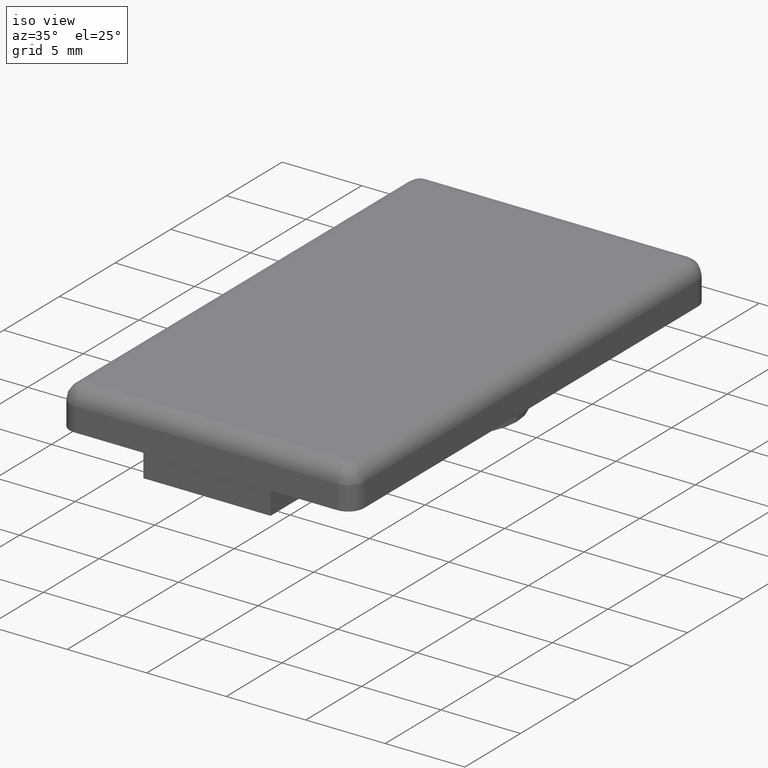
[diagram: clean part render]
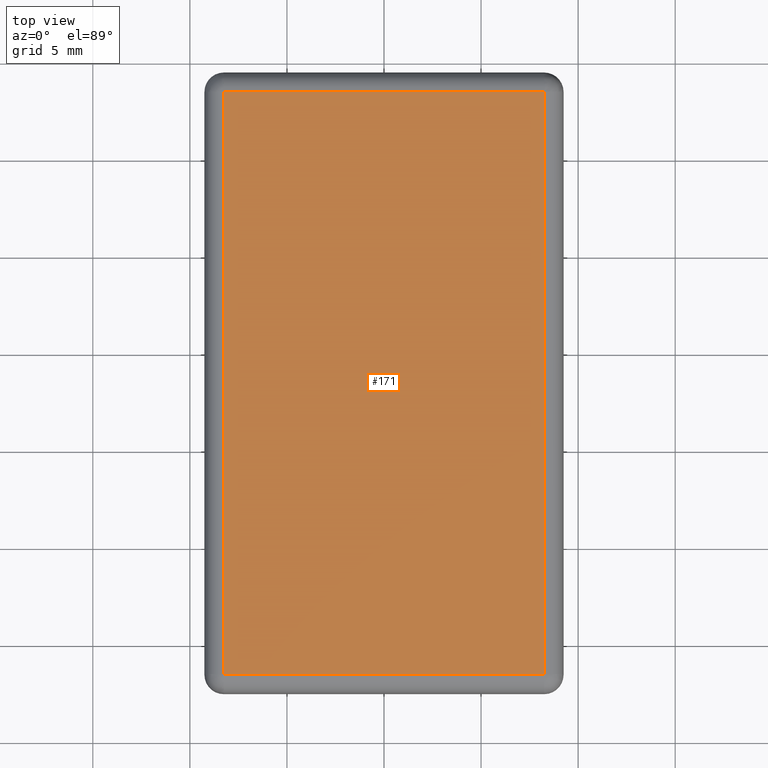
[diagram: tour spotlight — one face highlighted and labeled with its STEP entity id]
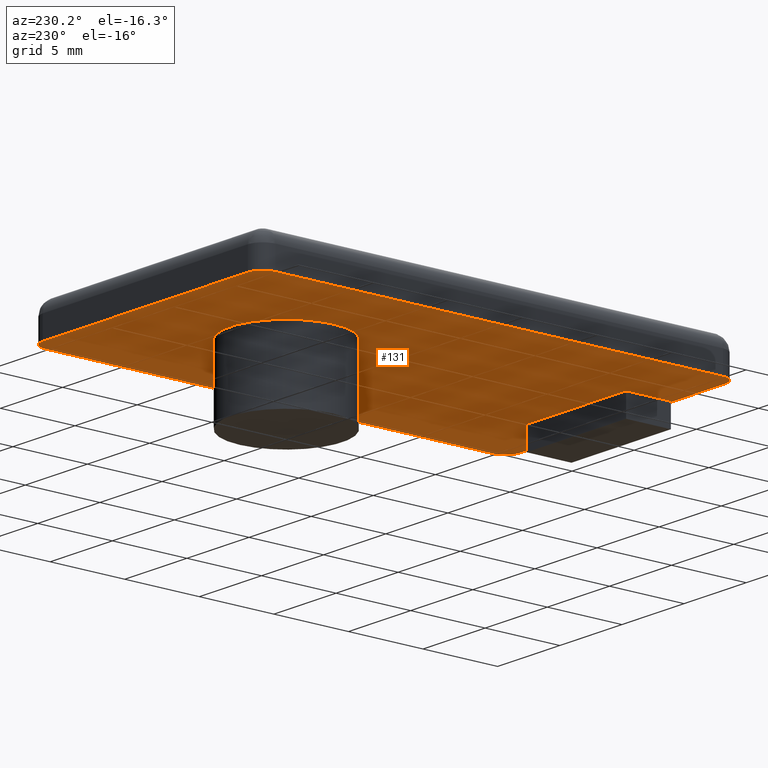
[diagram: tour spotlight — one face highlighted and labeled with its STEP entity id]
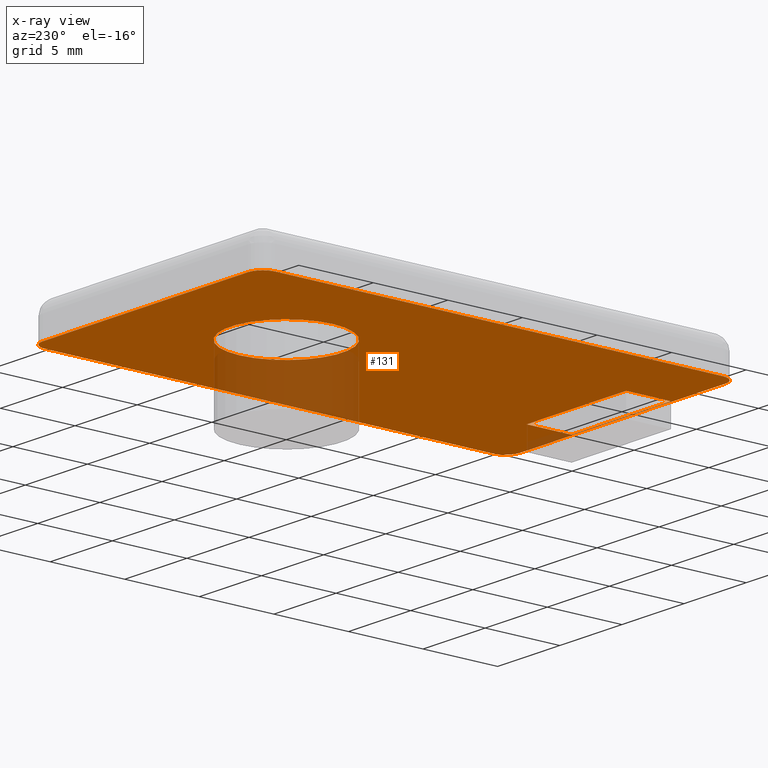
[diagram: x-ray of the same camera — body ghosted, this tour face saturated]
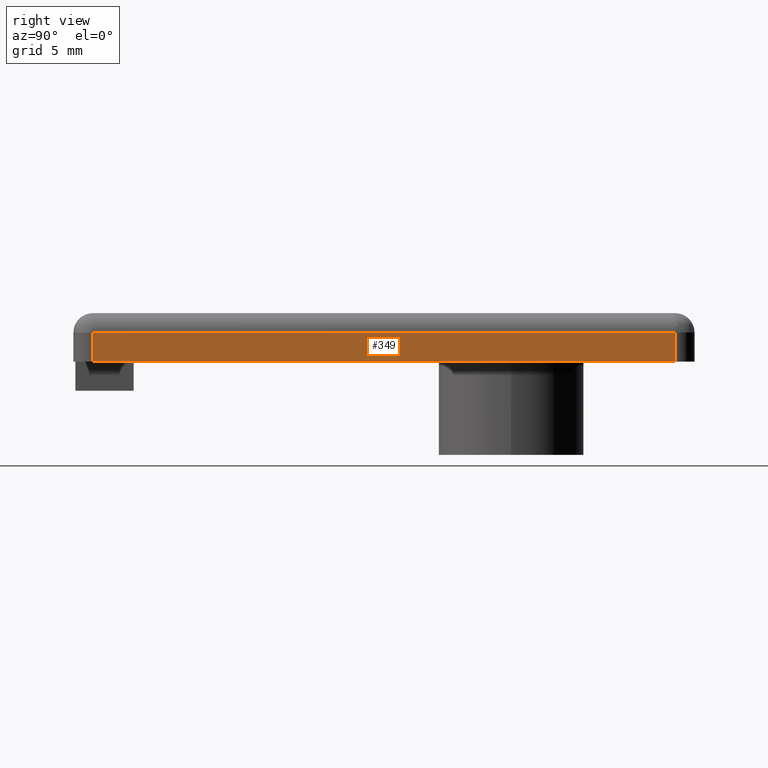
[diagram: tour spotlight — one face highlighted and labeled with its STEP entity id]
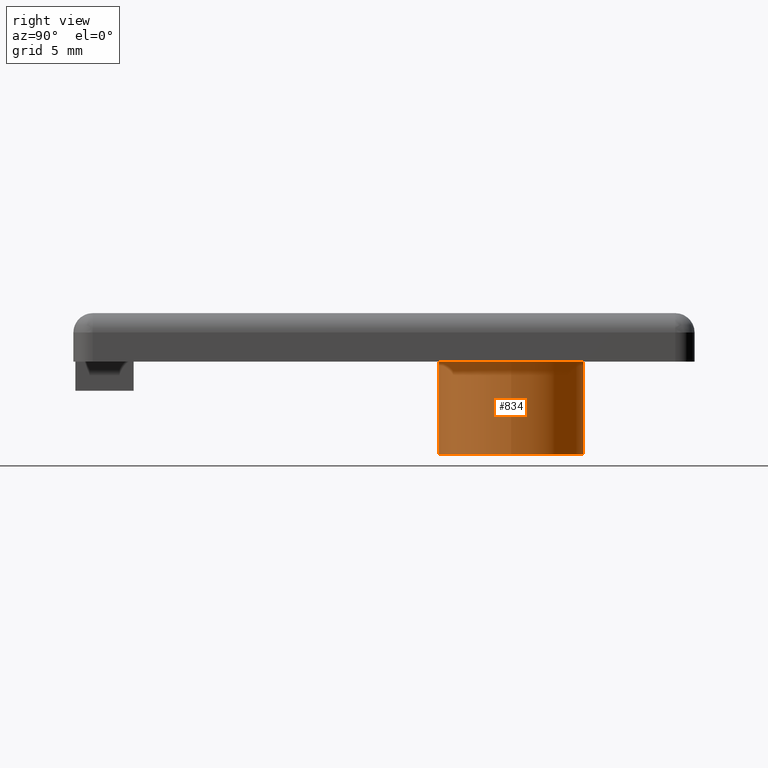
[diagram: tour spotlight — one face highlighted and labeled with its STEP entity id]
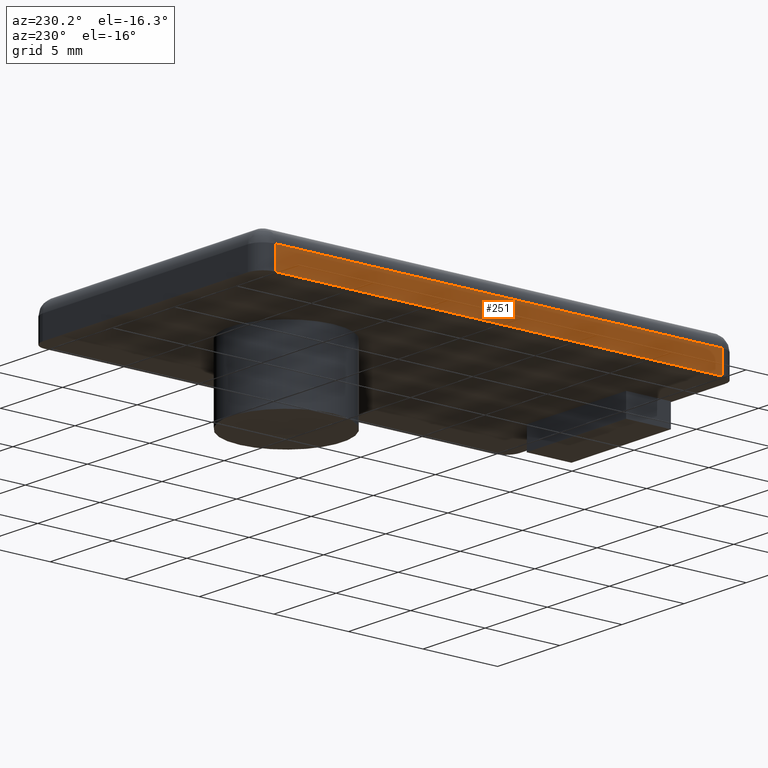
[diagram: tour spotlight — one face highlighted and labeled with its STEP entity id]
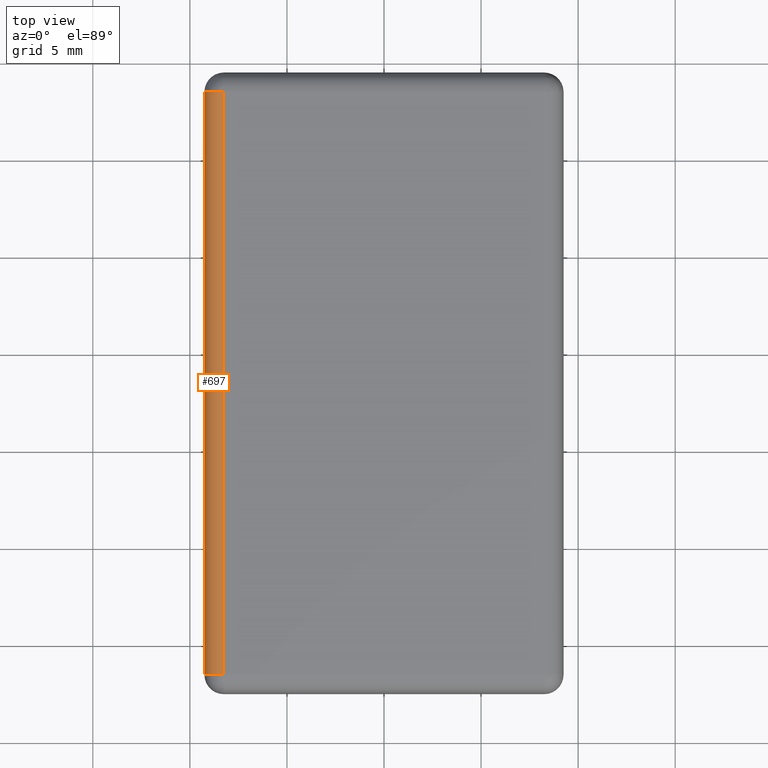
[diagram: tour spotlight — one face highlighted and labeled with its STEP entity id]
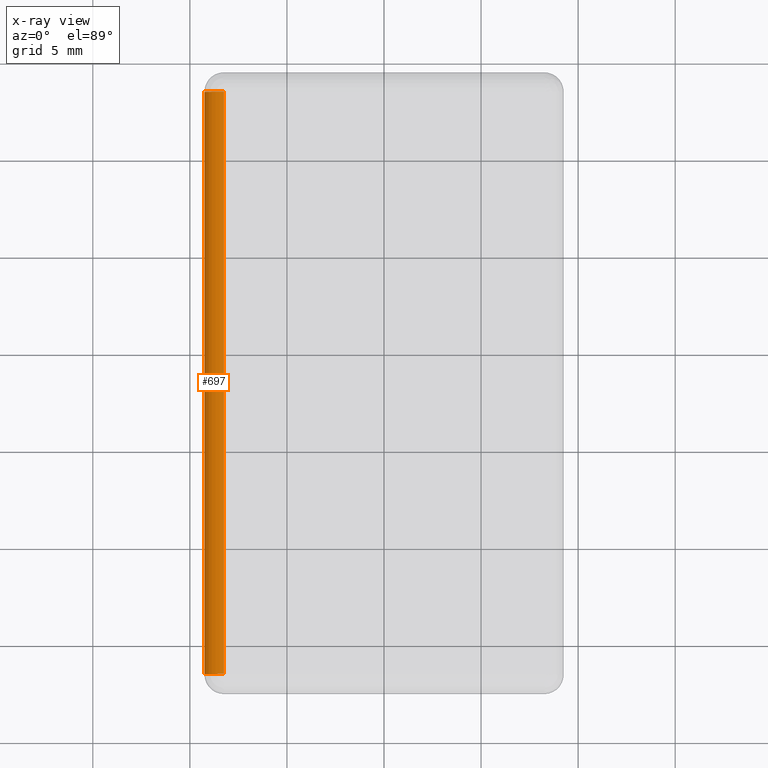
[diagram: x-ray of the same camera — body ghosted, this tour face saturated]
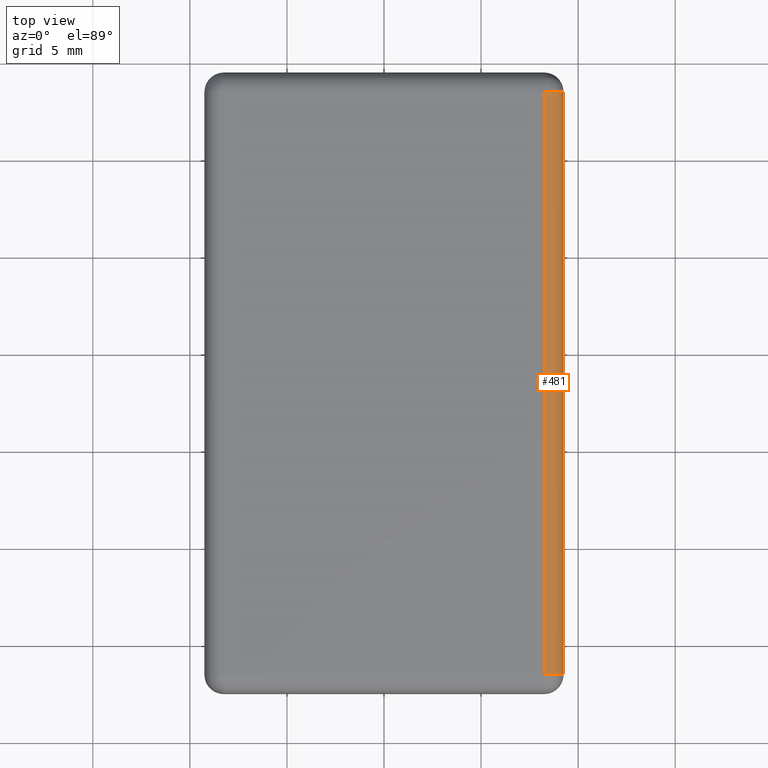
[diagram: tour spotlight — one face highlighted and labeled with its STEP entity id]
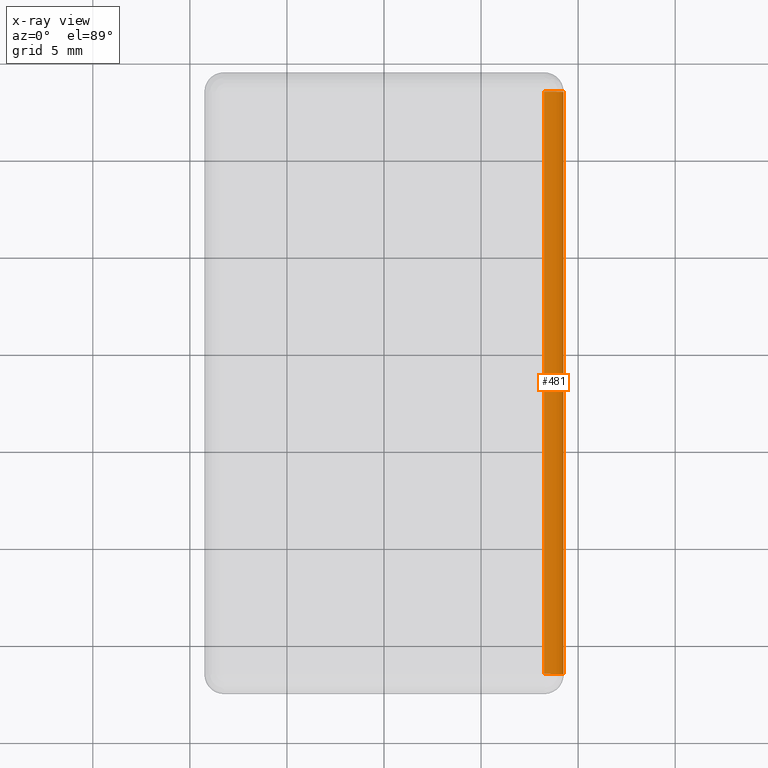
[diagram: x-ray of the same camera — body ghosted, this tour face saturated]
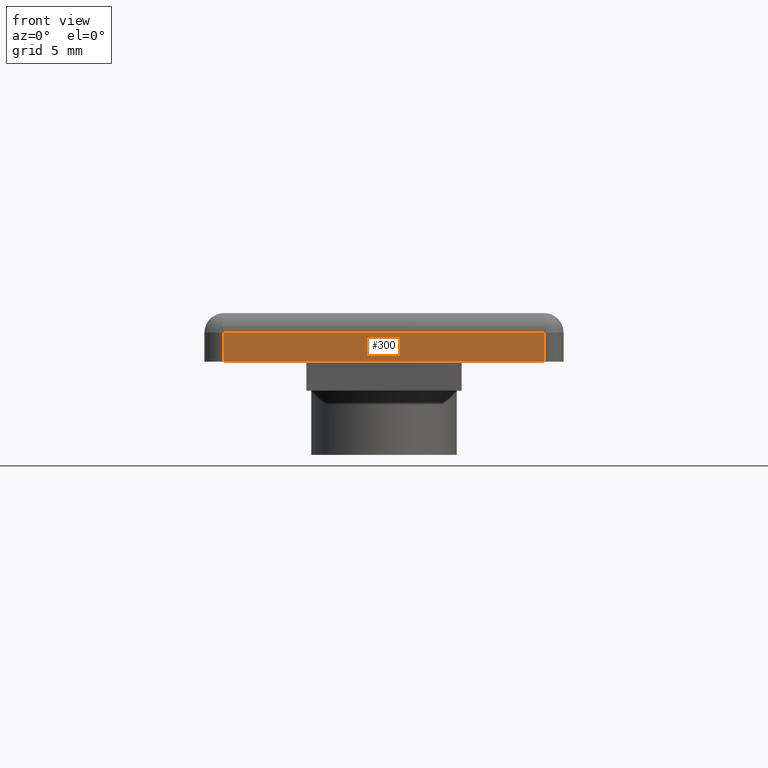
[diagram: tour spotlight — one face highlighted and labeled with its STEP entity id]
A machine part: a face-by-face anatomy tour. The part has 25 B-rep faces; the first image is the clean iso view, then the 8 largest visible faces are spotlighted one at a time (largest first), each with its STEP entity span.

Face 1 — top view, entity #171. In plain terms, the highlighted planar face has unit normal (0, 0, 1).
Definition (entity closure, byte-faithful):
#132=CARTESIAN_POINT('',(-11.100004732942580,-25.750004732806246,2.499999999989996));
#133=DIRECTION('',(0.0,0.0,1.0));
#134=DIRECTION('',(1.0,0.0,0.0));
#135=AXIS2_PLACEMENT_3D('',#132,#133,#134);
#136=PLANE('',#135);
#137=CARTESIAN_POINT('',(8.249999999963166,-21.549999999913780,2.499999999989996));
#138=VERTEX_POINT('',#137);
#139=CARTESIAN_POINT('',(8.249999999967258,8.449999999966167,2.499999999989996));
#140=VERTEX_POINT('',#139);
#141=CARTESIAN_POINT('',(8.249999999963166,-21.549999999913780,2.499999999989996));
#142=DIRECTION('',(0.0,1.0,0.0));
#143=VECTOR('',#142,29.999999999879947);
#144=LINE('',#141,#143);
#145=EDGE_CURVE('',#138,#140,#144,.T.);
#146=ORIENTED_EDGE('',*,*,#145,.T.);
#147=CARTESIAN_POINT('',(-8.249999999962711,8.449999999966167,2.499999999989996));
#148=VERTEX_POINT('',#147);
#149=CARTESIAN_POINT('',(8.249999999967258,8.449999999962074,2.499999999989996));
#150=DIRECTION('',(-1.0,0.0,0.0));
#151=VECTOR('',#150,16.499999999934062);
#152=LINE('',#149,#151);
#153=EDGE_CURVE('',#140,#148,#152,.T.);
#154=ORIENTED_EDGE('',*,*,#153,.T.);
#155=CARTESIAN_POINT('',(-8.249999999966803,-21.549999999909687,2.499999999989996));
#156=VERTEX_POINT('',#155);
#157=CARTESIAN_POINT('',(-8.249999999962711,8.449999999966167,2.499999999989996));
#158=DIRECTION('',(0.0,-1.0,0.0));
#159=VECTOR('',#158,29.999999999879947);
#160=LINE('',#157,#159);
#161=EDGE_CURVE('',#148,#156,#160,.T.);
#162=ORIENTED_EDGE('',*,*,#161,.T.);
#163=CARTESIAN_POINT('',(-8.249999999966803,-21.549999999909687,2.499999999989996));
#164=DIRECTION('',(1.0,0.0,0.0));
#165=VECTOR('',#164,16.499999999934062);
#166=LINE('',#163,#165);
#167=EDGE_CURVE('',#156,#138,#166,.T.);
#168=ORIENTED_EDGE('',*,*,#167,.T.);
#169=EDGE_LOOP('',(#146,#154,#162,#168));
#170=FACE_OUTER_BOUND('',#169,.T.);
#171=ADVANCED_FACE('',(#170),#136,.T.);

Face 2 — auxiliary view, entity #131. An x-ray twin of the same camera follows (body ghosted, this face saturated) — the face is partly hidden behind the body. In plain terms, the highlighted planar face has unit normal (0, 0, 1).
Definition (entity closure, byte-faithful):
#2=CARTESIAN_POINT('',(-11.100004732942580,-25.750004732806246,0.0));
#3=DIRECTION('',(0.0,0.0,1.0));
#4=DIRECTION('',(1.0,0.0,0.0));
#5=AXIS2_PLACEMENT_3D('',#2,#3,#4);
#6=PLANE('',#5);
#7=CARTESIAN_POINT('',(-8.249999999966803,-22.549999999909687,0.0));
#8=VERTEX_POINT('',#7);
#9=CARTESIAN_POINT('',(8.249999999967258,-22.549999999909687,0.0));
#10=VERTEX_POINT('',#9);
#11=CARTESIAN_POINT('',(-8.249999999966803,-22.549999999909687,0.0));
#12=DIRECTION('',(1.0,0.0,0.0));
#13=VECTOR('',#12,16.499999999934062);
#14=LINE('',#11,#13);
#15=EDGE_CURVE('',#8,#10,#14,.T.);
#16=ORIENTED_EDGE('',*,*,#15,.F.);
#17=CARTESIAN_POINT('',(-9.249999999962711,-21.549999999913780,0.0));
#18=VERTEX_POINT('',#17);
#19=CARTESIAN_POINT('',(-8.249999999966803,-21.549999999913780,0.0));
#20=DIRECTION('',(0.0,0.0,1.0));
#21=DIRECTION('',(1.0,0.0,0.0));
#22=AXIS2_PLACEMENT_3D('',#19,#20,#21);
#23=CIRCLE('',#22,0.999999999995907);
#24=EDGE_CURVE('',#18,#8,#23,.T.);
#25=ORIENTED_EDGE('',*,*,#24,.F.);
#26=CARTESIAN_POINT('',(-9.249999999962711,8.449999999966167,0.0));
#27=VERTEX_POINT('',#26);
#28=CARTESIAN_POINT('',(-9.249999999962711,8.449999999966167,0.0));
#29=DIRECTION('',(0.0,-1.0,0.0));
#30=VECTOR('',#29,29.999999999879947);
#31=LINE('',#28,#30);
#32=EDGE_CURVE('',#27,#18,#31,.T.);
#33=ORIENTED_EDGE('',*,*,#32,.F.);
#34=CARTESIAN_POINT('',(-8.249999999966803,9.449999999962074,0.0));
#35=VERTEX_POINT('',#34);
#36=CARTESIAN_POINT('',(-8.249999999966803,8.449999999966167,0.0));
#37=DIRECTION('',(0.0,0.0,1.0));
#38=DIRECTION('',(1.0,0.0,0.0));
#39=AXIS2_PLACEMENT_3D('',#36,#37,#38);
#40=CIRCLE('',#39,0.999999999995907);
#41=EDGE_CURVE('',#35,#27,#40,.T.);
#42=ORIENTED_EDGE('',*,*,#41,.F.);
#43=CARTESIAN_POINT('',(8.249999999967258,9.449999999962074,0.0));
#44=VERTEX_POINT('',#43);
#45=CARTESIAN_POINT('',(8.249999999967258,9.449999999962074,0.0));
#46=DIRECTION('',(-1.0,0.0,0.0));
#47=VECTOR('',#46,16.499999999934062);
#48=LINE('',#45,#47);
#49=EDGE_CURVE('',#44,#35,#48,.T.);
#50=ORIENTED_EDGE('',*,*,#49,.F.);
#51=CARTESIAN_POINT('',(9.249999999963166,8.449999999966167,0.0));
#52=VERTEX_POINT('',#51);
#53=CARTESIAN_POINT('',(8.249999999967258,8.449999999966167,0.0));
#54=DIRECTION('',(0.0,0.0,1.0));
#55=DIRECTION('',(1.0,0.0,0.0));
#56=AXIS2_PLACEMENT_3D('',#53,#54,#55);
#57=CIRCLE('',#56,0.999999999995907);
#58=EDGE_CURVE('',#52,#44,#57,.T.);
#59=ORIENTED_EDGE('',*,*,#58,.F.);
#60=CARTESIAN_POINT('',(9.249999999963166,-21.549999999913780,0.0));
#61=VERTEX_POINT('',#60);
#62=CARTESIAN_POINT('',(9.249999999963166,-21.549999999913780,0.0));
#63=DIRECTION('',(0.0,1.0,0.0));
#64=VECTOR('',#63,29.999999999879947);
#65=LINE('',#62,#64);
#66=EDGE_CURVE('',#61,#52,#65,.T.);
#67=ORIENTED_EDGE('',*,*,#66,.F.);
#68=CARTESIAN_POINT('',(8.249999999967258,-21.549999999913780,0.0));
#69=DIRECTION('',(0.0,0.0,1.0));
#70=DIRECTION('',(1.0,0.0,0.0));
#71=AXIS2_PLACEMENT_3D('',#68,#69,#70);
#72=CIRCLE('',#71,0.999999999995907);
#73=EDGE_CURVE('',#10,#61,#72,.T.);
#74=ORIENTED_EDGE('',*,*,#73,.F.);
#75=EDGE_LOOP('',(#16,#25,#33,#42,#50,#59,#67,#74));
#76=FACE_OUTER_BOUND('',#75,.T.);
#77=CARTESIAN_POINT('',(-3.749999999984993,0.0,0.0));
#78=VERTEX_POINT('',#77);
#79=CARTESIAN_POINT('',(3.749999999984993,0.0,0.0));
#80=VERTEX_POINT('',#79);
#81=CARTESIAN_POINT('',(0.0,0.0,0.0));
#82=DIRECTION('',(0.0,0.0,-1.0));
#83=DIRECTION('',(1.0,0.0,0.0));
#84=AXIS2_PLACEMENT_3D('',#81,#82,#83);
#85=CIRCLE('',#84,3.749999999984993);
#86=EDGE_CURVE('',#78,#80,#85,.T.);
#87=ORIENTED_EDGE('',*,*,#86,.F.);
#88=CARTESIAN_POINT('',(0.0,0.0,0.0));
#89=DIRECTION('',(0.0,0.0,-1.0));
#90=DIRECTION('',(1.0,0.0,0.0));
#91=AXIS2_PLACEMENT_3D('',#88,#89,#90);
#92=CIRCLE('',#91,3.749999999984993);
#93=EDGE_CURVE('',#80,#78,#92,.T.);
#94=ORIENTED_EDGE('',*,*,#93,.F.);
#95=EDGE_LOOP('',(#87,#94));
#96=FACE_BOUND('',#95,.T.);
#97=CARTESIAN_POINT('',(-3.999999999984084,-19.449999999922056,0.0));
#98=VERTEX_POINT('',#97);
#99=CARTESIAN_POINT('',(3.999999999984084,-19.449999999922056,0.0));
#100=VERTEX_POINT('',#99);
#101=CARTESIAN_POINT('',(-3.999999999984084,-19.449999999922056,0.0));
#102=DIRECTION('',(1.0,0.0,0.0));
#103=VECTOR('',#102,7.999999999968168);
#104=LINE('',#101,#103);
#105=EDGE_CURVE('',#98,#100,#104,.T.);
#106=ORIENTED_EDGE('',*,*,#105,.F.);
#107=CARTESIAN_POINT('',(-3.999999999984084,-22.449999999910233,0.0));
#108=VERTEX_POINT('',#107);
#109=CARTESIAN_POINT('',(-3.999999999984084,-22.449999999910233,0.0));
#110=DIRECTION('',(0.0,1.0,0.0));
#111=VECTOR('',#110,2.999999999988177);
#112=LINE('',#109,#111);
#113=EDGE_CURVE('',#108,#98,#112,.T.);
#114=ORIENTED_EDGE('',*,*,#113,.F.);
#115=CARTESIAN_POINT('',(3.999999999984084,-22.449999999910233,0.0));
#116=VERTEX_POINT('',#115);
#117=CARTESIAN_POINT('',(3.999999999984084,-22.449999999910233,0.0));
#118=DIRECTION('',(-1.0,0.0,0.0));
#119=VECTOR('',#118,7.999999999968168);
#120=LINE('',#117,#119);
#121=EDGE_CURVE('',#116,#108,#120,.T.);
#122=ORIENTED_EDGE('',*,*,#121,.F.);
#123=CARTESIAN_POINT('',(3.999999999984084,-19.449999999922056,0.0));
#124=DIRECTION('',(0.0,-1.0,0.0));
#125=VECTOR('',#124,2.999999999988177);
#126=LINE('',#123,#125);
#127=EDGE_CURVE('',#100,#116,#126,.T.);
#128=ORIENTED_EDGE('',*,*,#127,.F.);
#129=EDGE_LOOP('',(#106,#114,#122,#128));
#130=FACE_BOUND('',#129,.T.);
#131=ADVANCED_FACE('',(#76,#96,#130),#6,.F.);

Face 3 — right view, entity #349. In plain terms, the highlighted planar face has unit normal (1, 0, 0).
Definition (entity closure, byte-faithful):
#51=CARTESIAN_POINT('',(9.249999999963166,8.449999999966167,0.0));
#52=VERTEX_POINT('',#51);
#60=CARTESIAN_POINT('',(9.249999999963166,-21.549999999913780,0.0));
#61=VERTEX_POINT('',#60);
#62=CARTESIAN_POINT('',(9.249999999963166,-21.549999999913780,0.0));
#63=DIRECTION('',(0.0,1.0,0.0));
#64=VECTOR('',#63,29.999999999879947);
#65=LINE('',#62,#64);
#66=EDGE_CURVE('',#61,#52,#65,.T.);
#307=CARTESIAN_POINT('',(9.249999999963166,-21.549999999913780,1.499999999989996));
#308=VERTEX_POINT('',#307);
#309=CARTESIAN_POINT('',(9.249999999963166,-21.549999999913780,0.0));
#310=DIRECTION('',(0.0,0.0,1.0));
#311=VECTOR('',#310,1.499999999989996);
#312=LINE('',#309,#311);
#313=EDGE_CURVE('',#61,#308,#312,.T.);
#326=CARTESIAN_POINT('',(9.249999999963166,-21.549999999913780,0.0));
#327=DIRECTION('',(1.0,0.0,0.0));
#328=DIRECTION('',(0.0,1.0,0.0));
#329=AXIS2_PLACEMENT_3D('',#326,#327,#328);
#330=PLANE('',#329);
#331=ORIENTED_EDGE('',*,*,#66,.T.);
#332=CARTESIAN_POINT('',(9.249999999963166,8.449999999966167,1.499999999989996));
#333=VERTEX_POINT('',#332);
#334=CARTESIAN_POINT('',(9.249999999963166,8.449999999966167,0.0));
#335=DIRECTION('',(0.0,0.0,1.0));
#336=VECTOR('',#335,1.499999999989996);
#337=LINE('',#334,#336);
#338=EDGE_CURVE('',#52,#333,#337,.T.);
#339=ORIENTED_EDGE('',*,*,#338,.T.);
#340=CARTESIAN_POINT('',(9.249999999963166,-21.549999999913780,1.499999999989996));
#341=DIRECTION('',(0.0,1.0,0.0));
#342=VECTOR('',#341,29.999999999879947);
#343=LINE('',#340,#342);
#344=EDGE_CURVE('',#308,#333,#343,.T.);
#345=ORIENTED_EDGE('',*,*,#344,.F.);
#346=ORIENTED_EDGE('',*,*,#313,.F.);
#347=EDGE_LOOP('',(#331,#339,#345,#346));
#348=FACE_OUTER_BOUND('',#347,.T.);
#349=ADVANCED_FACE('',(#348),#330,.T.);

Face 4 — right view, entity #834. In plain terms, the highlighted cylindrical surface (bore or boss wall) has radius 3.75 mm, axis along (0, 0, -1).
Definition (entity closure, byte-faithful):
#77=CARTESIAN_POINT('',(-3.749999999984993,0.0,0.0));
#78=VERTEX_POINT('',#77);
#79=CARTESIAN_POINT('',(3.749999999984993,0.0,0.0));
#80=VERTEX_POINT('',#79);
#81=CARTESIAN_POINT('',(0.0,0.0,0.0));
#82=DIRECTION('',(0.0,0.0,-1.0));
#83=DIRECTION('',(1.0,0.0,0.0));
#84=AXIS2_PLACEMENT_3D('',#81,#82,#83);
#85=CIRCLE('',#84,3.749999999984993);
#86=EDGE_CURVE('',#78,#80,#85,.T.);
#88=CARTESIAN_POINT('',(0.0,0.0,0.0));
#89=DIRECTION('',(0.0,0.0,-1.0));
#90=DIRECTION('',(1.0,0.0,0.0));
#91=AXIS2_PLACEMENT_3D('',#88,#89,#90);
#92=CIRCLE('',#91,3.749999999984993);
#93=EDGE_CURVE('',#80,#78,#92,.T.);
#800=CARTESIAN_POINT('',(0.0,0.0,0.0));
#801=DIRECTION('',(0.0,0.0,-1.0));
#802=DIRECTION('',(1.0,0.0,0.0));
#803=AXIS2_PLACEMENT_3D('',#800,#801,#802);
#804=CYLINDRICAL_SURFACE('',#803,3.749999999984993);
#805=CARTESIAN_POINT('',(-3.749999999984993,0.0,-4.799999999981083));
#806=VERTEX_POINT('',#805);
#807=CARTESIAN_POINT('',(3.749999999984993,0.0,-4.799999999981083));
#808=VERTEX_POINT('',#807);
#809=CARTESIAN_POINT('',(0.0,0.0,-4.799999999981083));
#810=DIRECTION('',(0.0,0.0,-1.0));
#811=DIRECTION('',(1.0,0.0,0.0));
#812=AXIS2_PLACEMENT_3D('',#809,#810,#811);
#813=CIRCLE('',#812,3.749999999984993);
#814=EDGE_CURVE('',#806,#808,#813,.T.);
#815=ORIENTED_EDGE('',*,*,#814,.F.);
#816=CARTESIAN_POINT('',(0.0,0.0,-4.799999999981083));
#817=DIRECTION('',(0.0,0.0,-1.0));
#818=DIRECTION('',(1.0,0.0,0.0));
#819=AXIS2_PLACEMENT_3D('',#816,#817,#818);
#820=CIRCLE('',#819,3.749999999984993);
#821=EDGE_CURVE('',#808,#806,#820,.T.);
#822=ORIENTED_EDGE('',*,*,#821,.F.);
#823=CARTESIAN_POINT('',(3.749999999984993,0.0,0.0));
#824=DIRECTION('',(0.0,0.0,-1.0));
#825=VECTOR('',#824,4.799999999981083);
#826=LINE('',#823,#825);
#827=EDGE_CURVE('',#80,#808,#826,.T.);
#828=ORIENTED_EDGE('',*,*,#827,.F.);
#829=ORIENTED_EDGE('',*,*,#93,.T.);
#830=ORIENTED_EDGE('',*,*,#86,.T.);
#831=ORIENTED_EDGE('',*,*,#827,.T.);
#832=EDGE_LOOP('',(#815,#822,#828,#829,#830,#831));
#833=FACE_OUTER_BOUND('',#832,.T.);
#834=ADVANCED_FACE('',(#833),#804,.T.);

Face 5 — auxiliary view, entity #251. In plain terms, the highlighted planar face has unit normal (-1, 0, 0).
Definition (entity closure, byte-faithful):
#17=CARTESIAN_POINT('',(-9.249999999962711,-21.549999999913780,0.0));
#18=VERTEX_POINT('',#17);
#26=CARTESIAN_POINT('',(-9.249999999962711,8.449999999966167,0.0));
#27=VERTEX_POINT('',#26);
#28=CARTESIAN_POINT('',(-9.249999999962711,8.449999999966167,0.0));
#29=DIRECTION('',(0.0,-1.0,0.0));
#30=VECTOR('',#29,29.999999999879947);
#31=LINE('',#28,#30);
#32=EDGE_CURVE('',#27,#18,#31,.T.);
#209=CARTESIAN_POINT('',(-9.249999999962711,8.449999999966167,1.499999999989996));
#210=VERTEX_POINT('',#209);
#211=CARTESIAN_POINT('',(-9.249999999962711,8.449999999966167,0.0));
#212=DIRECTION('',(0.0,0.0,1.0));
#213=VECTOR('',#212,1.499999999989996);
#214=LINE('',#211,#213);
#215=EDGE_CURVE('',#27,#210,#214,.T.);
#228=CARTESIAN_POINT('',(-9.249999999962711,8.449999999966167,0.0));
#229=DIRECTION('',(-1.0,0.0,0.0));
#230=DIRECTION('',(0.0,-1.0,0.0));
#231=AXIS2_PLACEMENT_3D('',#228,#229,#230);
#232=PLANE('',#231);
#233=ORIENTED_EDGE('',*,*,#32,.T.);
#234=CARTESIAN_POINT('',(-9.249999999962711,-21.549999999913780,1.499999999989996));
#235=VERTEX_POINT('',#234);
#236=CARTESIAN_POINT('',(-9.249999999962711,-21.549999999913780,0.0));
#237=DIRECTION('',(0.0,0.0,1.0));
#238=VECTOR('',#237,1.499999999989996);
#239=LINE('',#236,#238);
#240=EDGE_CURVE('',#18,#235,#239,.T.);
#241=ORIENTED_EDGE('',*,*,#240,.T.);
#242=CARTESIAN_POINT('',(-9.249999999962711,8.449999999966167,1.499999999989996));
#243=DIRECTION('',(0.0,-1.0,0.0));
#244=VECTOR('',#243,29.999999999879947);
#245=LINE('',#242,#244);
#246=EDGE_CURVE('',#210,#235,#245,.T.);
#247=ORIENTED_EDGE('',*,*,#246,.F.);
#248=ORIENTED_EDGE('',*,*,#215,.F.);
#249=EDGE_LOOP('',(#233,#241,#247,#248));
#250=FACE_OUTER_BOUND('',#249,.T.);
#251=ADVANCED_FACE('',(#250),#232,.T.);

Face 6 — top view, entity #697. An x-ray twin of the same camera follows (body ghosted, this face saturated) — the face is partly hidden behind the body. In plain terms, the highlighted cylindrical surface (edge-blend (fillet) strip) has radius 1 mm, axis along (0, 1, 0).
Definition (entity closure, byte-faithful):
#147=CARTESIAN_POINT('',(-8.249999999962711,8.449999999966167,2.499999999989996));
#148=VERTEX_POINT('',#147);
#155=CARTESIAN_POINT('',(-8.249999999966803,-21.549999999909687,2.499999999989996));
#156=VERTEX_POINT('',#155);
#157=CARTESIAN_POINT('',(-8.249999999962711,8.449999999966167,2.499999999989996));
#158=DIRECTION('',(0.0,-1.0,0.0));
#159=VECTOR('',#158,29.999999999879947);
#160=LINE('',#157,#159);
#161=EDGE_CURVE('',#148,#156,#160,.T.);
#209=CARTESIAN_POINT('',(-9.249999999962711,8.449999999966167,1.499999999989996));
#210=VERTEX_POINT('',#209);
#234=CARTESIAN_POINT('',(-9.249999999962711,-21.549999999913780,1.499999999989996));
#235=VERTEX_POINT('',#234);
#242=CARTESIAN_POINT('',(-9.249999999962711,8.449999999966167,1.499999999989996));
#243=DIRECTION('',(0.0,-1.0,0.0));
#244=VECTOR('',#243,29.999999999879947);
#245=LINE('',#242,#244);
#246=EDGE_CURVE('',#210,#235,#245,.T.);
#669=CARTESIAN_POINT('',(-8.249999999966803,-21.549999999913780,1.499999999989996));
#670=DIRECTION('',(0.0,1.0,0.0));
#671=DIRECTION('',(-1.0,0.0,0.0));
#672=AXIS2_PLACEMENT_3D('',#669,#670,#671);
#673=CIRCLE('',#672,0.999999999995907);
#674=EDGE_CURVE('',#235,#156,#673,.T.);
#680=CARTESIAN_POINT('',(-8.249999999962711,8.449999999966167,1.499999999989996));
#681=DIRECTION('',(0.0,1.0,0.0));
#682=DIRECTION('',(-1.0,0.0,0.0));
#683=AXIS2_PLACEMENT_3D('',#680,#681,#682);
#684=CYLINDRICAL_SURFACE('',#683,1.0);
#685=ORIENTED_EDGE('',*,*,#674,.T.);
#686=ORIENTED_EDGE('',*,*,#161,.F.);
#687=CARTESIAN_POINT('',(-8.249999999962711,8.449999999966167,1.499999999989996));
#688=DIRECTION('',(0.0,1.0,0.0));
#689=DIRECTION('',(-1.0,0.0,0.0));
#690=AXIS2_PLACEMENT_3D('',#687,#688,#689);
#691=CIRCLE('',#690,1.0);
#692=EDGE_CURVE('',#210,#148,#691,.T.);
#693=ORIENTED_EDGE('',*,*,#692,.F.);
#694=ORIENTED_EDGE('',*,*,#246,.T.);
#695=EDGE_LOOP('',(#685,#686,#693,#694));
#696=FACE_OUTER_BOUND('',#695,.T.);
#697=ADVANCED_FACE('',(#696),#684,.T.);

Face 7 — top view, entity #481. An x-ray twin of the same camera follows (body ghosted, this face saturated) — the face is partly hidden behind the body. In plain terms, the highlighted cylindrical surface (edge-blend (fillet) strip) has radius 1 mm, axis along (0, -1, 0).
Definition (entity closure, byte-faithful):
#137=CARTESIAN_POINT('',(8.249999999963166,-21.549999999913780,2.499999999989996));
#138=VERTEX_POINT('',#137);
#139=CARTESIAN_POINT('',(8.249999999967258,8.449999999966167,2.499999999989996));
#140=VERTEX_POINT('',#139);
#141=CARTESIAN_POINT('',(8.249999999963166,-21.549999999913780,2.499999999989996));
#142=DIRECTION('',(0.0,1.0,0.0));
#143=VECTOR('',#142,29.999999999879947);
#144=LINE('',#141,#143);
#145=EDGE_CURVE('',#138,#140,#144,.T.);
#307=CARTESIAN_POINT('',(9.249999999963166,-21.549999999913780,1.499999999989996));
#308=VERTEX_POINT('',#307);
#332=CARTESIAN_POINT('',(9.249999999963166,8.449999999966167,1.499999999989996));
#333=VERTEX_POINT('',#332);
#340=CARTESIAN_POINT('',(9.249999999963166,-21.549999999913780,1.499999999989996));
#341=DIRECTION('',(0.0,1.0,0.0));
#342=VECTOR('',#341,29.999999999879947);
#343=LINE('',#340,#342);
#344=EDGE_CURVE('',#308,#333,#343,.T.);
#454=CARTESIAN_POINT('',(8.249999999967258,8.449999999966167,1.499999999989996));
#455=DIRECTION('',(0.0,-1.0,0.0));
#456=DIRECTION('',(1.0,0.0,0.0));
#457=AXIS2_PLACEMENT_3D('',#454,#455,#456);
#458=CIRCLE('',#457,0.999999999995907);
#459=EDGE_CURVE('',#333,#140,#458,.T.);
#464=CARTESIAN_POINT('',(8.249999999963166,-21.549999999913780,1.499999999989996));
#465=DIRECTION('',(0.0,-1.0,0.0));
#466=DIRECTION('',(1.0,0.0,0.0));
#467=AXIS2_PLACEMENT_3D('',#464,#465,#466);
#468=CYLINDRICAL_SURFACE('',#467,1.0);
#469=ORIENTED_EDGE('',*,*,#459,.T.);
#470=ORIENTED_EDGE('',*,*,#145,.F.);
#471=CARTESIAN_POINT('',(8.249999999963166,-21.549999999913780,1.499999999989996));
#472=DIRECTION('',(0.0,-1.0,0.0));
#473=DIRECTION('',(1.0,0.0,0.0));
#474=AXIS2_PLACEMENT_3D('',#471,#472,#473);
#475=CIRCLE('',#474,1.0);
#476=EDGE_CURVE('',#308,#138,#475,.T.);
#477=ORIENTED_EDGE('',*,*,#476,.F.);
#478=ORIENTED_EDGE('',*,*,#344,.T.);
#479=EDGE_LOOP('',(#469,#470,#477,#478));
#480=FACE_OUTER_BOUND('',#479,.T.);
#481=ADVANCED_FACE('',(#480),#468,.T.);

Face 8 — front view, entity #300. In plain terms, the highlighted planar face has unit normal (0, -1, 0).
Definition (entity closure, byte-faithful):
#7=CARTESIAN_POINT('',(-8.249999999966803,-22.549999999909687,0.0));
#8=VERTEX_POINT('',#7);
#9=CARTESIAN_POINT('',(8.249999999967258,-22.549999999909687,0.0));
#10=VERTEX_POINT('',#9);
#11=CARTESIAN_POINT('',(-8.249999999966803,-22.549999999909687,0.0));
#12=DIRECTION('',(1.0,0.0,0.0));
#13=VECTOR('',#12,16.499999999934062);
#14=LINE('',#11,#13);
#15=EDGE_CURVE('',#8,#10,#14,.T.);
#258=CARTESIAN_POINT('',(-8.249999999966803,-22.549999999909687,1.499999999989996));
#259=VERTEX_POINT('',#258);
#260=CARTESIAN_POINT('',(-8.249999999966803,-22.549999999909687,0.0));
#261=DIRECTION('',(0.0,0.0,1.0));
#262=VECTOR('',#261,1.499999999989996);
#263=LINE('',#260,#262);
#264=EDGE_CURVE('',#8,#259,#263,.T.);
#277=CARTESIAN_POINT('',(-8.249999999966803,-22.549999999909687,0.0));
#278=DIRECTION('',(0.0,-1.0,0.0));
#279=DIRECTION('',(1.0,0.0,0.0));
#280=AXIS2_PLACEMENT_3D('',#277,#278,#279);
#281=PLANE('',#280);
#282=CARTESIAN_POINT('',(8.249999999967258,-22.549999999909687,1.499999999989996));
#283=VERTEX_POINT('',#282);
#284=CARTESIAN_POINT('',(8.249999999967258,-22.549999999909687,0.0));
#285=DIRECTION('',(0.0,0.0,1.0));
#286=VECTOR('',#285,1.499999999989996);
#287=LINE('',#284,#286);
#288=EDGE_CURVE('',#10,#283,#287,.T.);
#289=ORIENTED_EDGE('',*,*,#288,.T.);
#290=CARTESIAN_POINT('',(-8.249999999966803,-22.549999999909687,1.499999999989996));
#291=DIRECTION('',(1.0,0.0,0.0));
#292=VECTOR('',#291,16.499999999934062);
#293=LINE('',#290,#292);
#294=EDGE_CURVE('',#259,#283,#293,.T.);
#295=ORIENTED_EDGE('',*,*,#294,.F.);
#296=ORIENTED_EDGE('',*,*,#264,.F.);
#297=ORIENTED_EDGE('',*,*,#15,.T.);
#298=EDGE_LOOP('',(#289,#295,#296,#297));
#299=FACE_OUTER_BOUND('',#298,.T.);
#300=ADVANCED_FACE('',(#299),#281,.T.);